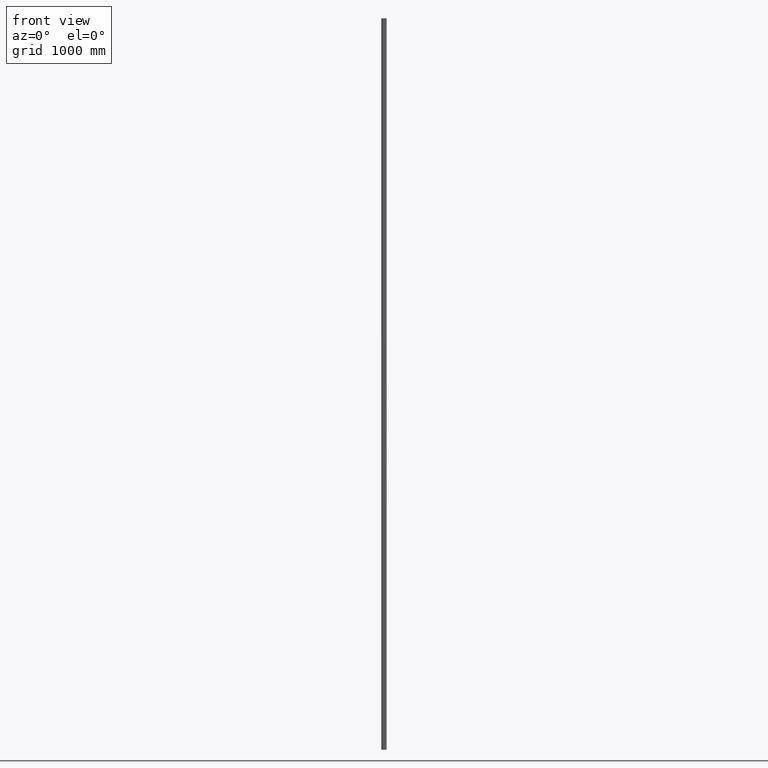
[diagram: clean part render]
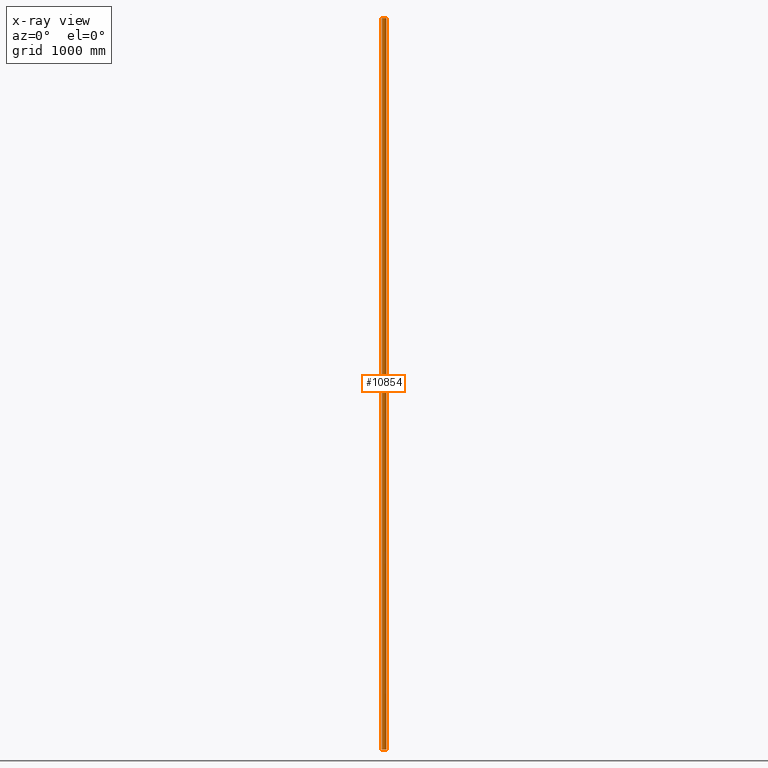
[diagram: x-ray — body ghosted, one internal face saturated and labeled with its STEP entity id]
A machine part, front view, then the same camera in x-ray: the body is ghosted and one INTERNAL B-rep face — a face not visible from any outside direction — is saturated and labeled: STEP entity #10854.
In plain terms, the highlighted cylindrical surface (edge-blend (fillet) strip) has radius 19.7 mm, axis along (0, 0, 1).
Its self-contained STEP definition (entity closure, byte-faithful):
#752 = CARTESIAN_POINT ( 'NONE',  ( -14.36458333333333215, 0.8657029058421021883, -3000.000000000000000 ) ) ;
#982 = DIRECTION ( 'NONE',  ( 0.000000000000000000, 0.000000000000000000, 1.000000000000000000 ) ) ;
#1026 = EDGE_CURVE ( 'NONE', #2426, #13450, #4889, .T. ) ;
#1295 = DIRECTION ( 'NONE',  ( 0.000000000000000000, 0.000000000000000000, 1.000000000000000000 ) ) ;
#2426 = VERTEX_POINT ( 'NONE', #12621 ) ;
#3001 = EDGE_CURVE ( 'NONE', #2426, #6275, #13333, .T. ) ;
#3217 = VECTOR ( 'NONE', #12493, 1000.000000000000000 ) ;
#3472 = EDGE_CURVE ( 'NONE', #13450, #6518, #14416, .T. ) ;
#3531 = DIRECTION ( 'NONE',  ( 0.000000000000000000, 0.000000000000000000, 1.000000000000000000 ) ) ;
#4488 = CARTESIAN_POINT ( 'NONE',  ( 14.36458333333332504, 0.8657029058420969703, -3000.000000000000000 ) ) ;
#4889 = CIRCLE ( 'NONE', #13797, 19.70000000000000284 ) ;
#5185 = ORIENTED_EDGE ( 'NONE', *, *, #1026, .F. ) ;
#5671 = AXIS2_PLACEMENT_3D ( 'NONE', #9375, #1295, #13909 ) ;
#6024 = CARTESIAN_POINT ( 'NONE',  ( 8.179191214543138373E-16, 14.34712514756876445, -3000.000000000000000 ) ) ;
#6275 = VERTEX_POINT ( 'NONE', #8239 ) ;
#6518 = VERTEX_POINT ( 'NONE', #12520 ) ;
#7002 = DIRECTION ( 'NONE',  ( 1.000000000000000000, 0.000000000000000000, 0.000000000000000000 ) ) ;
#7746 = ORIENTED_EDGE ( 'NONE', *, *, #12845, .T. ) ;
#7813 = CARTESIAN_POINT ( 'NONE',  ( 8.179191214543138373E-16, 14.34712514756876445, -3000.000000000000000 ) ) ;
#8239 = CARTESIAN_POINT ( 'NONE',  ( 14.36458333333332504, 0.8657029058420969703, 3000.000000000000000 ) ) ;
#8264 = VECTOR ( 'NONE', #982, 1000.000000000000000 ) ;
#8348 = DIRECTION ( 'NONE',  ( 0.000000000000000000, 0.000000000000000000, 1.000000000000000000 ) ) ;
#8444 = ORIENTED_EDGE ( 'NONE', *, *, #3001, .T. ) ;
#8657 = AXIS2_PLACEMENT_3D ( 'NONE', #6024, #8348, #7002 ) ;
#9375 = CARTESIAN_POINT ( 'NONE',  ( 8.179191214543138373E-16, 14.34712514756876445, 3000.000000000000000 ) ) ;
#9883 = CARTESIAN_POINT ( 'NONE',  ( -14.36458333333333215, 0.8657029058421021883, -3000.000000000000000 ) ) ;
#10854 = ADVANCED_FACE ( 'NONE', ( #13085 ), #13817, .F. ) ;
#11262 = CIRCLE ( 'NONE', #5671, 19.70000000000000284 ) ;
#12461 = ORIENTED_EDGE ( 'NONE', *, *, #3472, .F. ) ;
#12493 = DIRECTION ( 'NONE',  ( 0.000000000000000000, 0.000000000000000000, 1.000000000000000000 ) ) ;
#12520 = CARTESIAN_POINT ( 'NONE',  ( -14.36458333333333215, 0.8657029058421021883, 3000.000000000000000 ) ) ;
#12621 = CARTESIAN_POINT ( 'NONE',  ( 14.36458333333332504, 0.8657029058420969703, -3000.000000000000000 ) ) ;
#12845 = EDGE_CURVE ( 'NONE', #6275, #6518, #11262, .T. ) ;
#13085 = FACE_OUTER_BOUND ( 'NONE', #14922, .T. ) ;
#13333 = LINE ( 'NONE', #4488, #3217 ) ;
#13450 = VERTEX_POINT ( 'NONE', #752 ) ;
#13797 = AXIS2_PLACEMENT_3D ( 'NONE', #7813, #3531, #13924 ) ;
#13817 = CYLINDRICAL_SURFACE ( 'NONE', #8657, 19.70000000000000284 ) ;
#13909 = DIRECTION ( 'NONE',  ( 1.000000000000000000, 0.000000000000000000, 0.000000000000000000 ) ) ;
#13924 = DIRECTION ( 'NONE',  ( 1.000000000000000000, 0.000000000000000000, 0.000000000000000000 ) ) ;
#14416 = LINE ( 'NONE', #9883, #8264 ) ;
#14922 = EDGE_LOOP ( 'NONE', ( #7746, #12461, #5185, #8444 ) ) ;